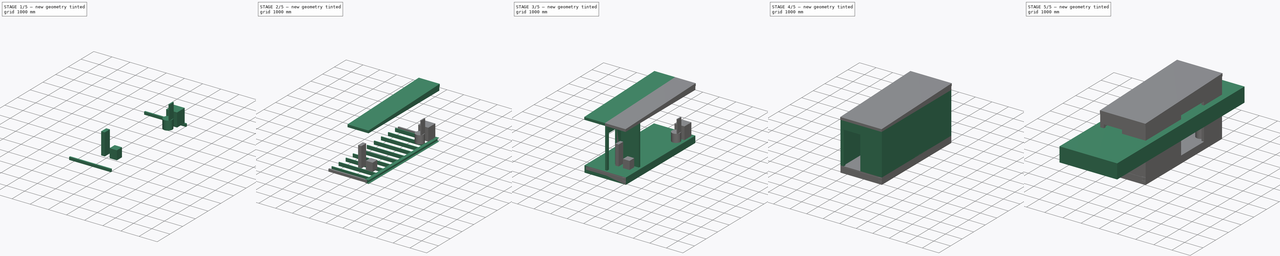
[diagram: build sequence overview — one tinted view per stage of 5, left to right]
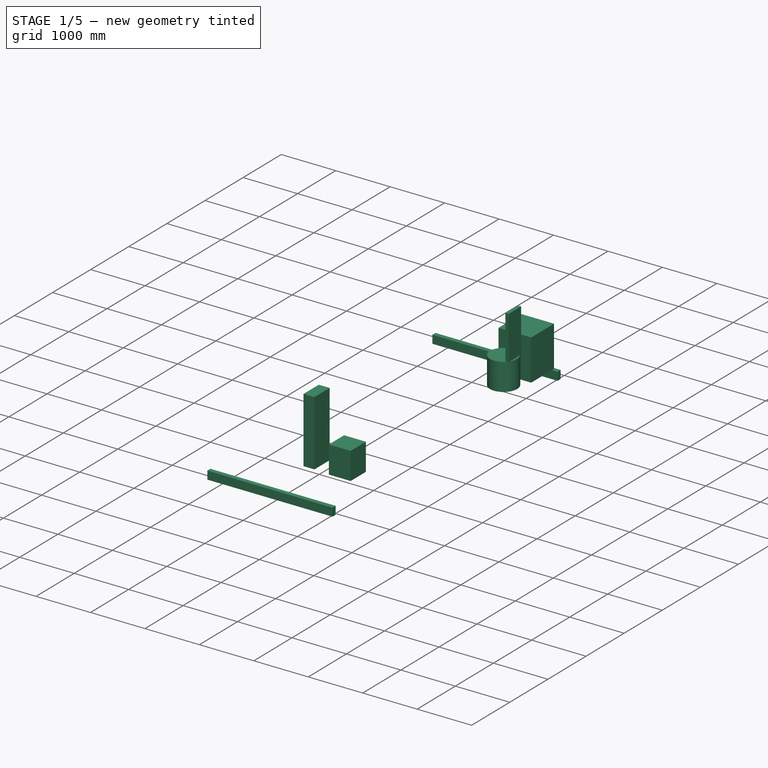
[diagram: stage 1 of 5 — iso view after this stage's code; geometry added in this stage tinted green]
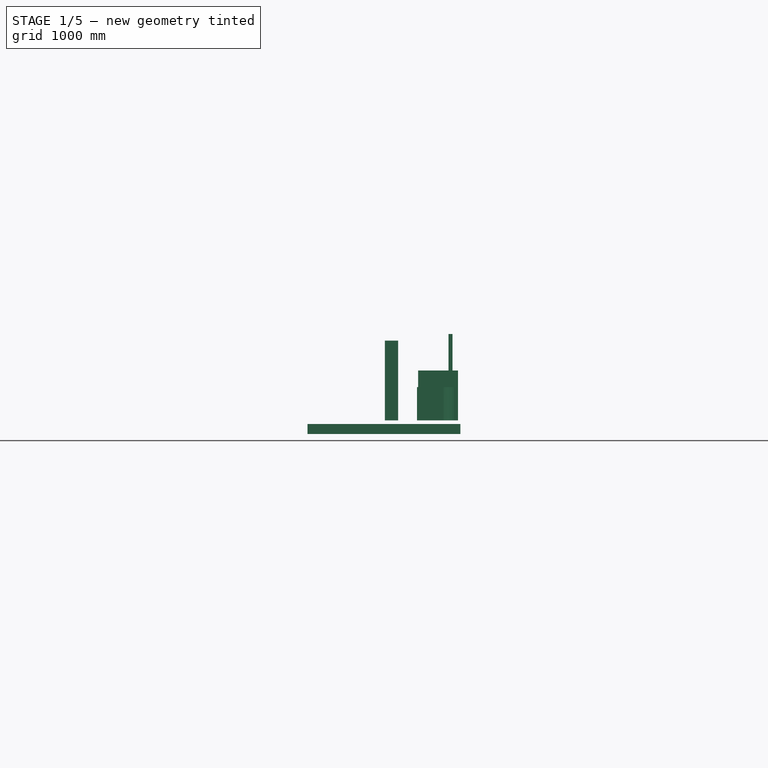
[diagram: stage 1 of 5 — front view after this stage's code; geometry added in this stage tinted green]
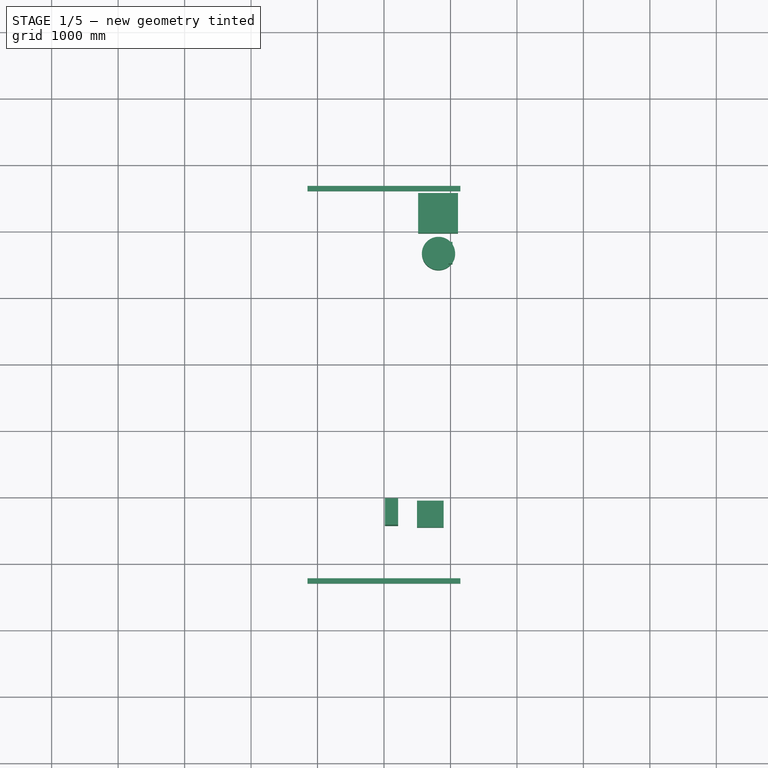
[diagram: stage 1 of 5 — top view after this stage's code; geometry added in this stage tinted green]
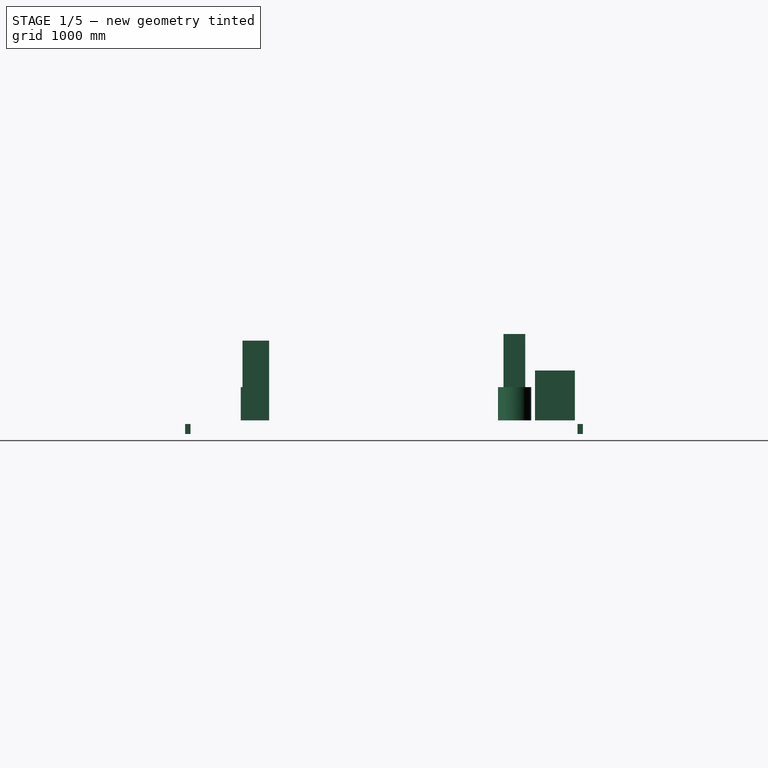
[diagram: stage 1 of 5 — right view after this stage's code; geometry added in this stage tinted green]
FCSTD DOCUMENT  (FreeCAD 0.16RUnknown)
Label: modulehouse
License: CreativeCommons Attribution-ShareAlike
LicenseURL: http://creativecommons.org/licenses/by-sa/4.0/
objects: Sketcher::SketchObject×21, PartDesign::Pad×15, Part::FeaturePython×13, Part::Mirroring×1, Part::MultiFuse×1, Part::Part2DObjectPython×1
note: 67 computed .brp shape members not serialized (recipe doc carries the construction recipe); baked Part::Feature solids carry a one-line shape summary decoded from their .brp

FEATURE [Sketcher::SketchObject] Sketch018  label="floor-endbeams"
  Placement = pos=(0,0,0) rot=(0.57735,0.57735,0.57735;2.0944rad)
  sketch-geometry (9):
    g0: LineSegment StartX=-2293.01 StartY=-54.5721 StartZ=0 EndX=-2213.01 EndY=-54.5721 EndZ=0
    g1: LineSegment StartX=-2213.01 StartY=-54.5721 StartZ=0 EndX=-2213.01 EndY=-204.572 EndZ=0
    g2: LineSegment StartX=-2213.01 StartY=-204.572 StartZ=0 EndX=-2293.01 EndY=-204.572 EndZ=0
    g3: LineSegment StartX=-2293.01 StartY=-204.572 StartZ=0 EndX=-2293.01 EndY=-54.5721 EndZ=0
    g4: LineSegment StartX=3691.04 StartY=-54.5721 StartZ=0 EndX=3611.04 EndY=-54.5721 EndZ=0
    g5: LineSegment StartX=3611.04 StartY=-54.5721 StartZ=0 EndX=3611.04 EndY=-204.572 EndZ=0
    g6: LineSegment StartX=3611.04 StartY=-204.572 StartZ=0 EndX=3691.04 EndY=-204.572 EndZ=0
    g7: LineSegment StartX=3691.04 StartY=-204.572 StartZ=0 EndX=3691.04 EndY=-54.5721 EndZ=0
    g8: LineSegment [constr] StartX=3611.04 StartY=-204.572 StartZ=0 EndX=-2213.01 EndY=-204.572 EndZ=0
  constraints (23):
    c: Coincident(g0,g1)
    c: Coincident(g1,g2)
    c: Coincident(g2,g3)
    c: Coincident(g3,g0)
    c: Horizontal(g0)
    c: Horizontal(g2)
    c: Vertical(g1)
    c: Vertical(g3)
    c: Coincident(g4,g5)
    c: Coincident(g5,g6)
    c: Coincident(g6,g7)
    c: Coincident(g7,g4)
    c: Horizontal(g4)
    c: Horizontal(g6)
    c: Vertical(g5)
    c: Vertical(g7)
    c: Equal(g6,g2)
    c: Equal(g3,g5)
    c: Coincident(g5,g8)
    c: Coincident(g8,g1)
    c: Horizontal(g8)
    c: DistanceY(g3,g3) = 150
    c: DistanceX(g2,g2) = 80
FEATURE [PartDesign::Pad] Pad009
  Length = 2300
  Length2 = 100
  Midplane = true
  Placement = pos=(0,0,0) rot=(0.57735,0.57735,0.57735;2.0944rad)
  Sketch = -> Sketch018
  Type = 0
FEATURE [PartDesign::Pad] Pad010
  Length = 500
  Length2 = 100
  Sketch = -> Sketch006
  Type = 0
FEATURE [PartDesign::Pad] Pad011
  Length = 1200
  Length2 = 100
  Sketch = -> Sketch007
  Type = 0
FEATURE [Sketcher::SketchObject] Sketch019  label="closet"
  sketch-geometry (4):
    g0: LineSegment StartX=1113.05 StartY=3569.95 StartZ=0 EndX=513.05 EndY=3569.95 EndZ=0
    g1: LineSegment StartX=513.05 StartY=3569.95 StartZ=0 EndX=513.05 EndY=2969.95 EndZ=0
    g2: LineSegment StartX=513.05 StartY=2969.95 StartZ=0 EndX=1113.05 EndY=2969.95 EndZ=0
    g3: LineSegment StartX=1113.05 StartY=2969.95 StartZ=0 EndX=1113.05 EndY=3569.95 EndZ=0
  constraints (10):
    c: Coincident(g0,g1)
    c: Coincident(g1,g2)
    c: Coincident(g2,g3)
    c: Coincident(g3,g0)
    c: Horizontal(g0)
    c: Horizontal(g2)
    c: Vertical(g1)
    c: Vertical(g3)
    c: Equal(g2,g3)
    c: DistanceX(g2,g2) = 600
FEATURE [PartDesign::Pad] Pad012
  Length = 750
  Length2 = 100
  Sketch = -> Sketch019
  Type = 0
FEATURE [Sketcher::SketchObject] Sketch020
  sketch-geometry (1):
    g0: Circle CenterX=820.11 CenterY=2664.66 CenterZ=0 NormalX=0 NormalY=0 NormalZ=1 Radius=250
  constraints (1):
    c: Radius(g0) = 250
FEATURE [PartDesign::Pad] Pad013
  Length = 500
  Length2 = 100
  Sketch = -> Sketch020
  Type = 0
FEATURE [Sketcher::SketchObject] Sketch021
  Placement = pos=(0,0,500) rot=(0,0,1;0rad)
  Support = -> Pad013 [Face3]
  sketch-geometry (4):
    g0: LineSegment StartX=969.744 StartY=2824.75 StartZ=0 EndX=1030.44 EndY=2824.75 EndZ=0
    g1: LineSegment StartX=1030.44 StartY=2824.75 StartZ=0 EndX=1030.44 EndY=2497.64 EndZ=0
    g2: LineSegment StartX=1030.44 StartY=2497.64 StartZ=0 EndX=969.744 EndY=2497.64 EndZ=0
    g3: LineSegment StartX=969.744 StartY=2497.64 StartZ=0 EndX=969.744 EndY=2824.75 EndZ=0
  constraints (8):
    c: Coincident(g0,g1)
    c: Coincident(g1,g2)
    c: Coincident(g2,g3)
    c: Coincident(g3,g0)
    c: Horizontal(g0)
    c: Horizontal(g2)
    c: Vertical(g1)
    c: Vertical(g3)
FEATURE [PartDesign::Pad] Pad014
  Length = 800
  Length2 = 100
  Sketch = -> Sketch021
  Type = 0
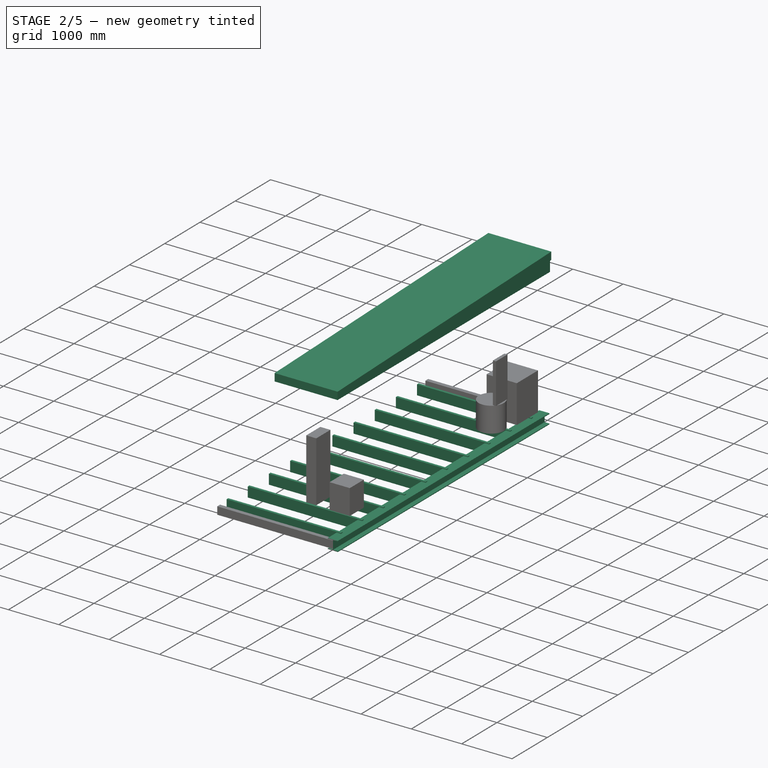
[diagram: stage 2 of 5 — iso view after this stage's code; geometry added in this stage tinted green]
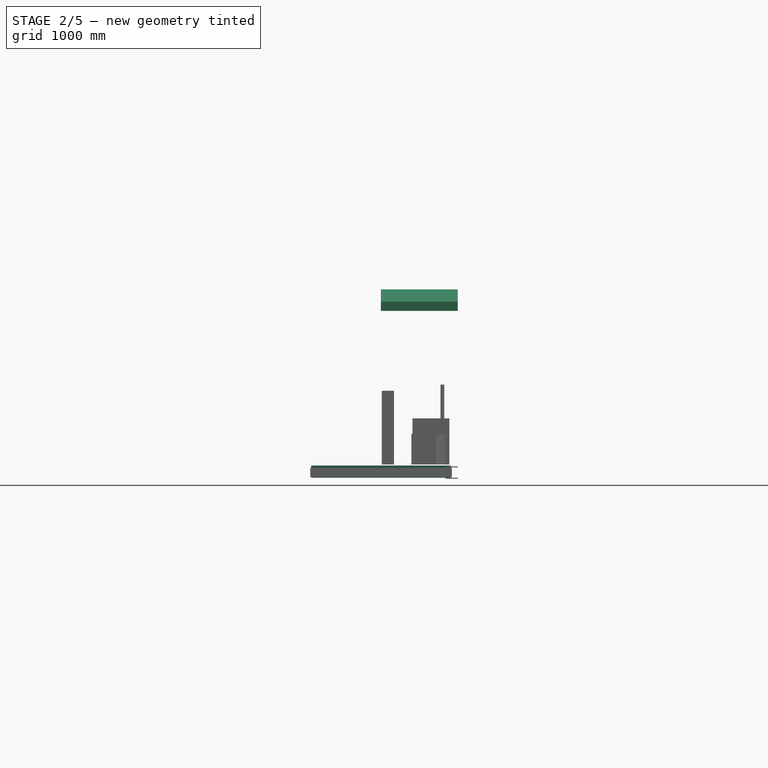
[diagram: stage 2 of 5 — front view after this stage's code; geometry added in this stage tinted green]
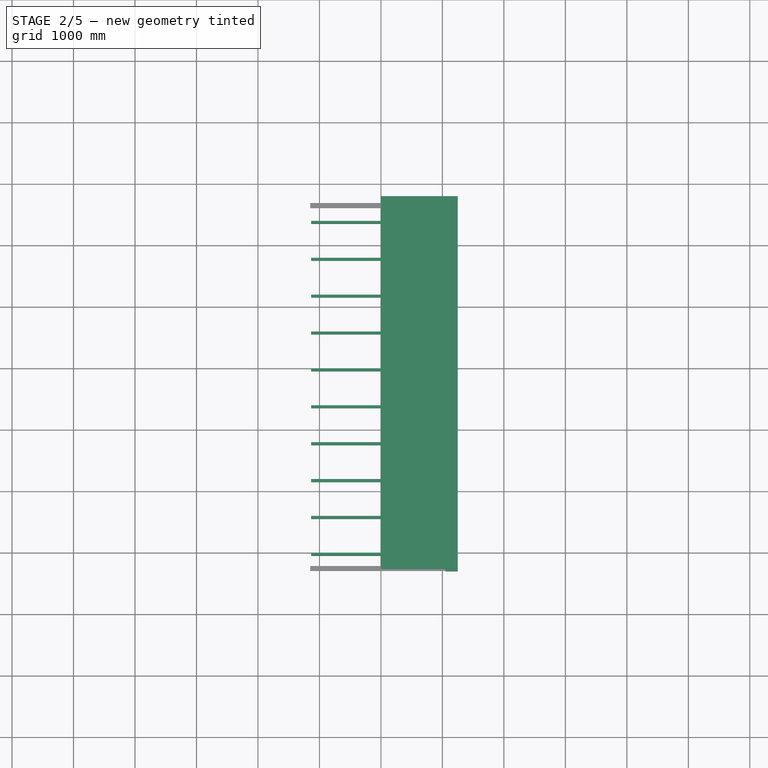
[diagram: stage 2 of 5 — top view after this stage's code; geometry added in this stage tinted green]
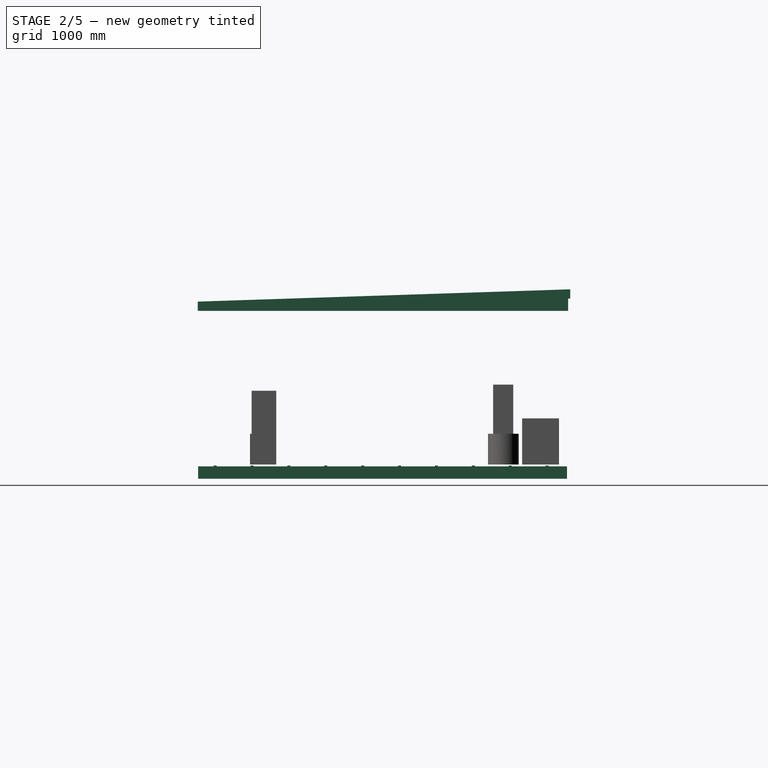
[diagram: stage 2 of 5 — right view after this stage's code; geometry added in this stage tinted green]
FEATURE [Sketcher::SketchObject] Sketch015
  Placement = pos=(0,0,0) rot=(0.57735,0.57735,0.57735;2.0944rad)
  sketch-geometry (4):
    g0: LineSegment StartX=-2307.2 StartY=2500 StartZ=0 EndX=3752.8 EndY=2700 EndZ=0
    g1: LineSegment StartX=3752.8 StartY=2700 StartZ=0 EndX=3752.8 EndY=2850 EndZ=0
    g2: LineSegment StartX=3752.8 StartY=2850 StartZ=0 EndX=-2307.2 EndY=2650 EndZ=0
    g3: LineSegment StartX=-2307.2 StartY=2650 StartZ=0 EndX=-2307.2 EndY=2500 EndZ=0
  constraints (13):
    c: Coincident(g0,g1)
    c: Coincident(g1,g2)
    c: Coincident(g2,g3)
    c: Coincident(g3,g0)
    c: Vertical(g3)
    c: Vertical(g1)
    c: Parallel(g0,g2)
    c: DistanceY(g1,g1) = 150
    c: DistanceY(g0,g0) = 200
    c: Angle(g0) = 0.0329913
    c: DistanceX(g0,g0) = 6060
    c: DistanceY(g1) = 2850
    c: DistanceY(g0) = 2500
FEATURE [PartDesign::Pad] Pad006
  Length = 1250
  Length2 = 100
  Placement = pos=(0,0,0) rot=(0.57735,0.57735,0.57735;2.0944rad)
  Sketch = -> Sketch015
  Type = 0
FEATURE [Sketcher::SketchObject] Sketch016
  ExternalGeometry = -> [Pad006]
  Placement = pos=(1250,0,0) rot=(0.57735,0.57735,0.57735;2.0944rad)
  Support = -> Pad006 [Face6]
  sketch-geometry (4):
    g0: LineSegment StartX=-2282.2 StartY=2500.83 StartZ=0 EndX=3717.8 EndY=2698.84 EndZ=0
    g1: LineSegment StartX=3717.8 StartY=2698.84 StartZ=0 EndX=3717.8 EndY=2499.83 EndZ=0
    g2: LineSegment StartX=3717.8 StartY=2499.83 StartZ=0 EndX=-2282.2 EndY=2499.83 EndZ=0
    g3: LineSegment StartX=-2282.2 StartY=2499.83 StartZ=0 EndX=-2282.2 EndY=2500.83 EndZ=0
  constraints (12):
    c: Coincident(g0,g1)
    c: Vertical(g1)
    c: Coincident(g1,g2)
    c: Coincident(g2,g3)
    c: Coincident(g3,g0)
    c: Vertical(g3)
    c: DistanceX(g0,g0) = 6000
    c: PointOnObject(g0,g-3)
    c: Horizontal(g2)
    c: DistanceX(g-3,g0) = 25
    c: DistanceY(g3,g3) = 1
    c: PointOnObject(g0,g-3)
FEATURE [PartDesign::Pad] Pad007
  Length = 150
  Length2 = 100
  Placement = pos=(0,0,0) rot=(0.57735,0.57735,0.57735;2.0944rad)
  Reversed = true
  Sketch = -> Sketch016
  Type = 0
FEATURE [Part::Part2DObjectPython] HEB200  # Draft 2D object (typed FeaturePython)
  FlangeThickness = 15
  Height = 200
  WebThickness = 9
  Width = 200
FEATURE [Part::FeaturePython] Structure  # WARN: FeaturePython — macro-defined, semantics opaque (R4)
  Base = -> HEB200
  Height = 6000
  Length = 0
  MoveWithHost = false
  Nodes = (2) [(0,-2.56664e-15,0),(0,-2.56664e-15,6000)]
  Normal = (0,0,0)
  Placement = pos=(-1150,-2300,-130) rot=(1,0,0;1.5708rad)
  Profile = HEB200
  Role = 1
  Width = 100
FEATURE [Part::FeaturePython] Structure001  label="Clone of Structure"  # WARN: FeaturePython — macro-defined, semantics opaque (R4)
  CloneOf = -> Structure
  Height = 1000
  Length = 100
  MoveWithHost = false
  Nodes = (2) [(0,0,0),(0,0,1000)]
  Normal = (0,0,0)
  Placement = pos=(1150,-2300,-130) rot=(1,0,0;1.5708rad)
  Role = 1
  Width = 100
FEATURE [Sketcher::SketchObject] Sketch017  label="floor-beam"
  Placement = pos=(0,0,0) rot=(0.57735,0.57735,0.57735;2.0944rad)
  sketch-geometry (5):
    g0: LineSegment StartX=-2048 StartY=-16 StartZ=0 EndX=-2000 EndY=-16 EndZ=0
    g1: LineSegment StartX=-2000 StartY=-16 StartZ=0 EndX=-2000 EndY=-214 EndZ=0
    g2: LineSegment StartX=-2000 StartY=-214 StartZ=0 EndX=-2048 EndY=-214 EndZ=0
    g3: LineSegment StartX=-2048 StartY=-214 StartZ=0 EndX=-2048 EndY=-16 EndZ=0
    g4: LineSegment [constr] StartX=-2048 StartY=-214 StartZ=0 EndX=-2048 EndY=-230 EndZ=0
  constraints (15):
    c: Coincident(g0,g1)
    c: Coincident(g1,g2)
    c: Coincident(g2,g3)
    c: Coincident(g3,g0)
    c: Horizontal(g0)
    c: Horizontal(g2)
    c: Vertical(g1)
    c: Vertical(g3)
    c: DistanceY(g3,g3) = 198
    c: DistanceX(g2,g2) = 48
    c: Coincident(g4,g2)
    c: Vertical(g4)
    c: DistanceY(g4,g4) = 16
    c: DistanceY(g4) = -230
    c: DistanceX(g0) = -2000
FEATURE [PartDesign::Pad] Pad008
  Length = 2270
  Length2 = 100
  Midplane = true
  Placement = pos=(0,0,0) rot=(0.57735,0.57735,0.57735;2.0944rad)
  Sketch = -> Sketch017
  Type = 0
FEATURE [Part::FeaturePython] Array  # Draft array (typed FeaturePython)
  Angle = 360
  ArrayType = 0
  Axis = (0,0,1)
  Base = -> Pad008
  Center = (0,0,0)
  Fuse = false
  IntervalAxis = (0,0,0)
  IntervalX = (1,0,0)
  IntervalY = (0,600,0)
  IntervalZ = (0,0,0)
  NumberPolar = 1
  NumberX = 1
  NumberY = 10
  NumberZ = 1
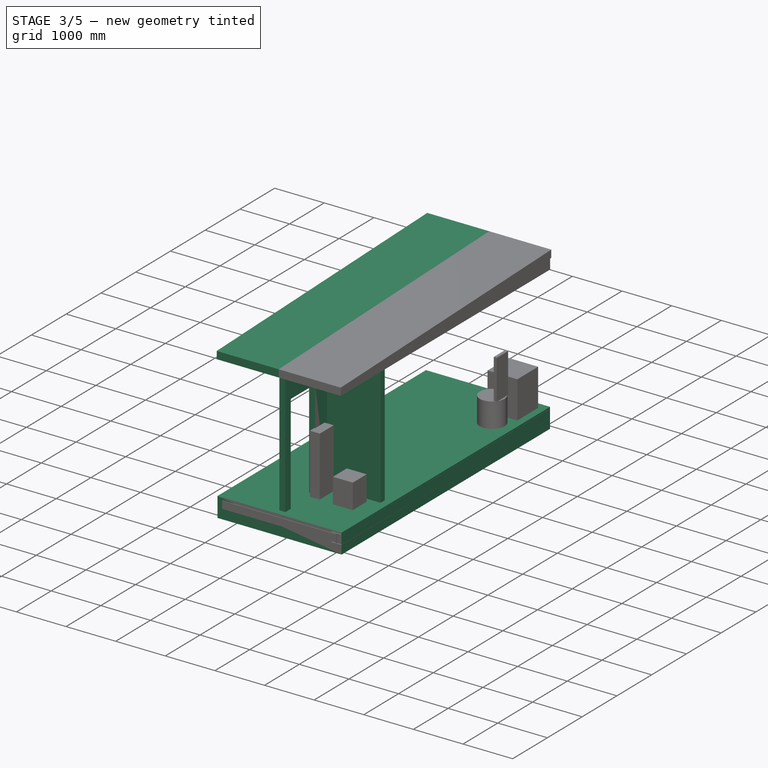
[diagram: stage 3 of 5 — iso view after this stage's code; geometry added in this stage tinted green]
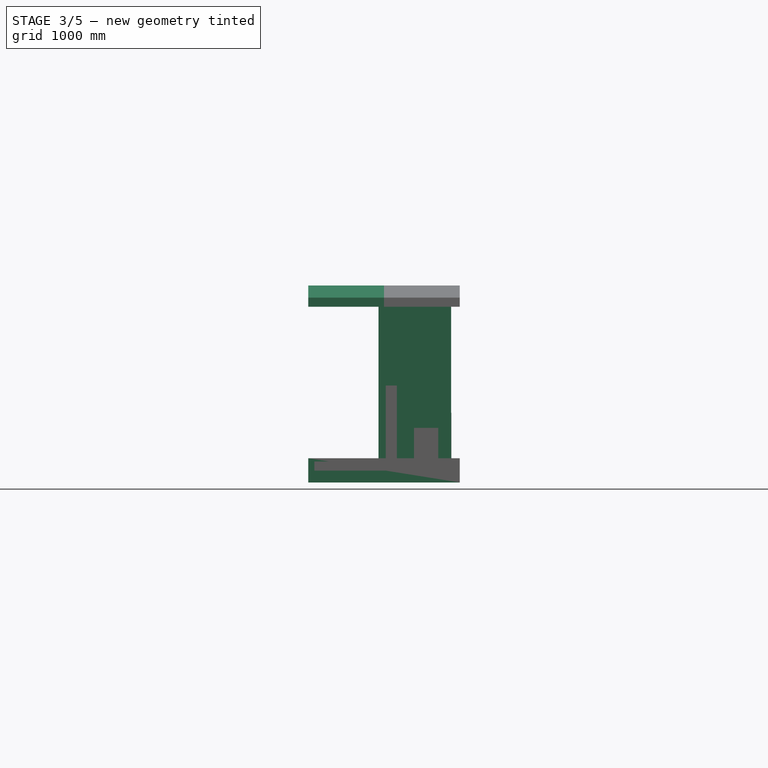
[diagram: stage 3 of 5 — front view after this stage's code; geometry added in this stage tinted green]
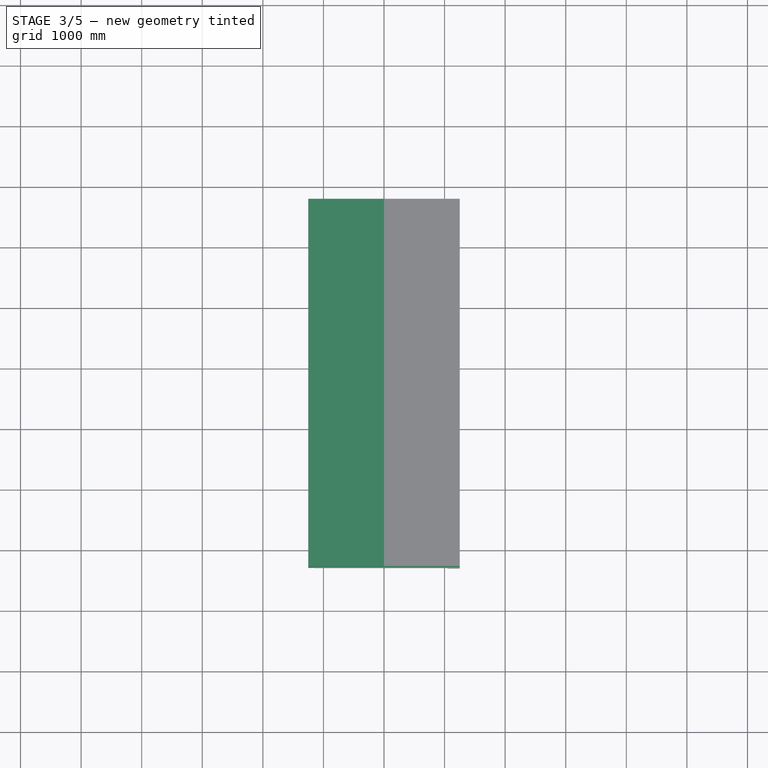
[diagram: stage 3 of 5 — top view after this stage's code; geometry added in this stage tinted green]
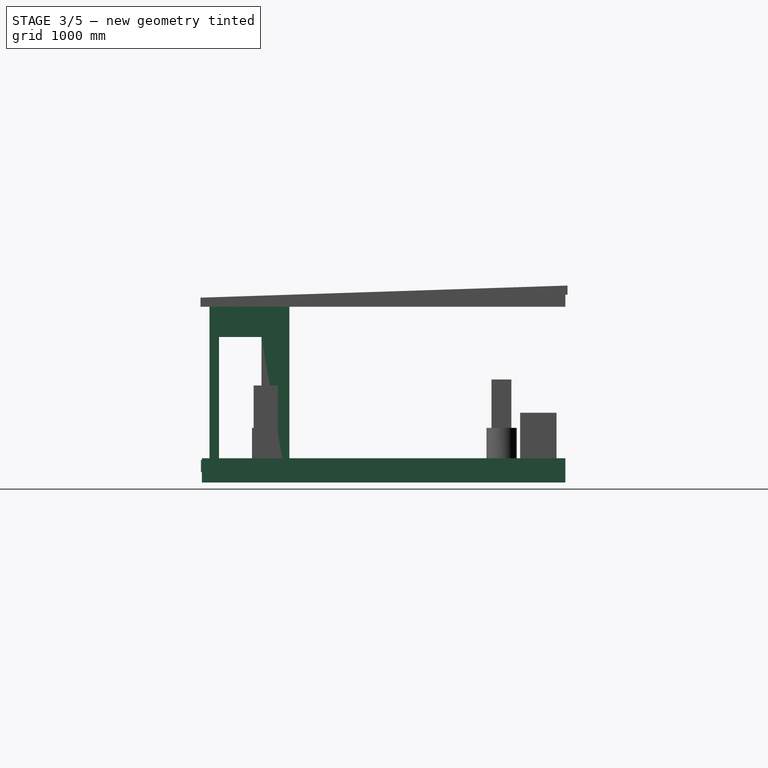
[diagram: stage 3 of 5 — right view after this stage's code; geometry added in this stage tinted green]
FEATURE [Sketcher::SketchObject] Sketch005  label="bathroom-wall"
  sketch-geometry (5):
    g0: LineSegment StartX=-91.6822 StartY=-838.186 StartZ=0 EndX=1108.32 EndY=-838.186 EndZ=0
    g1: LineSegment [constr] StartX=1108.32 StartY=-838.186 StartZ=0 EndX=1108.32 EndY=-2158.19 EndZ=0
    g2: LineSegment [constr] StartX=1108.32 StartY=-2158.19 StartZ=0 EndX=-91.6822 EndY=-2158.19 EndZ=0
    g3: LineSegment StartX=-91.6822 StartY=-2158.19 StartZ=0 EndX=-91.6822 EndY=-838.186 EndZ=0
    g4: LineSegment [constr] StartX=-91.6822 StartY=-838.186 StartZ=0 EndX=-1091.68 EndY=-838.186 EndZ=0
  constraints (13):
    c: Coincident(g0,g1)
    c: Coincident(g1,g2)
    c: Coincident(g2,g3)
    c: Coincident(g3,g0)
    c: Horizontal(g0)
    c: Horizontal(g2)
    c: Vertical(g1)
    c: Vertical(g3)
    c: DistanceY(g1,g1) = 1320
    c: DistanceX(g0,g0) = 1200
    c: Horizontal(g4)
    c: Coincident(g0,g4)
    c: DistanceX(g4,g4) = 1000
FEATURE [Part::FeaturePython] Wall003  # WARN: FeaturePython — macro-defined, semantics opaque (R4)
  Align = 0
  Base = -> Sketch005
  Face = 0
  Height = 2500
  Length = 2520
  MoveWithHost = false
  Normal = (0,0,0)
  Role = 0
  Width = 120
FEATURE [Sketcher::SketchObject] Sketch013
  Placement = pos=(-91.6822,-1300,0) rot=(0.57735,-0.57735,-0.57735;2.0944rad)
  sketch-geometry (8):
    g0: LineSegment StartX=0 StartY=0 StartZ=0 EndX=700 EndY=0 EndZ=0
    g1: LineSegment StartX=700 StartY=0 StartZ=0 EndX=700 EndY=2000 EndZ=0
    g2: LineSegment StartX=700 StartY=2000 StartZ=0 EndX=0 EndY=2000 EndZ=0
    g3: LineSegment StartX=0 StartY=2000 StartZ=0 EndX=0 EndY=0 EndZ=0
    g4: LineSegment StartX=50 StartY=0 StartZ=0 EndX=650 EndY=0 EndZ=0
    g5: LineSegment StartX=650 StartY=0 StartZ=0 EndX=650 EndY=1950 EndZ=0
    g6: LineSegment StartX=650 StartY=1950 StartZ=0 EndX=50 EndY=1950 EndZ=0
    g7: LineSegment StartX=50 StartY=1950 StartZ=0 EndX=50 EndY=0 EndZ=0
  constraints (23):
    c: Coincident(g0,g1)
    c: Coincident(g1,g2)
    c: Coincident(g2,g3)
    c: Coincident(g3,g0)
    c: Horizontal(g0)
    c: Horizontal(g2)
    c: Vertical(g1)
    c: Vertical(g3)
    c: Coincident(g4,g5)
    c: Coincident(g5,g6)
    c: Coincident(g6,g7)
    c: Coincident(g7,g4)
    c: Horizontal(g4)
    c: Horizontal(g6)
    c: Vertical(g5)
    c: Vertical(g7)
    c: DistanceY(g1) = 2000
    c: DistanceX(g0) = 700
    c: DistanceY(g6,g2) = 50
    c: DistanceX(g2,g6) = 50
    c: DistanceX(g4,g0) = 50
    c: DistanceY(g0,g4) = 0
    c: Coincident(g0,g-1)
FEATURE [Part::FeaturePython] Window003  label="Window002"  # WARN: FeaturePython — macro-defined, semantics opaque (R4)
  Base = -> Sketch013
  Height = 2000
  HoleDepth = 0
  MoveWithHost = true
  Normal = (1,0,0)
  Preset = 6
  Role = 1
  Width = 700
  WindowParts = OuterFrame | Frame | Wire0,Wire1 | 50.0 | 50.0 | Door | Solid panel | Wire1 | 50.0 | 100.0
FEATURE [Part::FeaturePython] Wall005  # WARN: FeaturePython — macro-defined, semantics opaque (R4)
  Align = 2
  Base = -> Wall003
  Face = 0
  Height = 3000
  Length = 0
  MoveWithHost = false
  Normal = (0,0,0)
  Role = 0
  Subtractions = -> [Window003]
  Width = 200
FEATURE [Sketcher::SketchObject] Sketch014  label="floorwork"
  sketch-geometry (4):
    g0: LineSegment StartX=-1250 StartY=3716.2 StartZ=0 EndX=1250 EndY=3716.2 EndZ=0
    g1: LineSegment StartX=1250 StartY=3716.2 StartZ=0 EndX=1250 EndY=-2283.8 EndZ=0
    g2: LineSegment StartX=1250 StartY=-2283.8 StartZ=0 EndX=-1250 EndY=-2283.8 EndZ=0
    g3: LineSegment StartX=-1250 StartY=-2283.8 StartZ=0 EndX=-1250 EndY=3716.2 EndZ=0
  constraints (11):
    c: Coincident(g0,g1)
    c: Coincident(g1,g2)
    c: Coincident(g2,g3)
    c: Coincident(g3,g0)
    c: Horizontal(g0)
    c: Horizontal(g2)
    c: Vertical(g1)
    c: Vertical(g3)
    c: Symmetric(g1,g2,g-2)
    c: DistanceX(g2,g2) = 2500
    c: DistanceY(g1,g1) = 6000
FEATURE [PartDesign::Pad] Pad005
  Length = 400
  Length2 = 100
  Reversed = true
  Sketch = -> Sketch014
  Type = 0
FEATURE [Part::Mirroring] Part__Mirroring  label="Pad007 (Mirror #1)"
  Base = (0,0,0)
  Normal = (1,0,0)
  Source = -> Pad007
FEATURE [Part::MultiFuse] Fusion  label="roof"
  Shapes = -> [Pad007,Part__Mirroring]
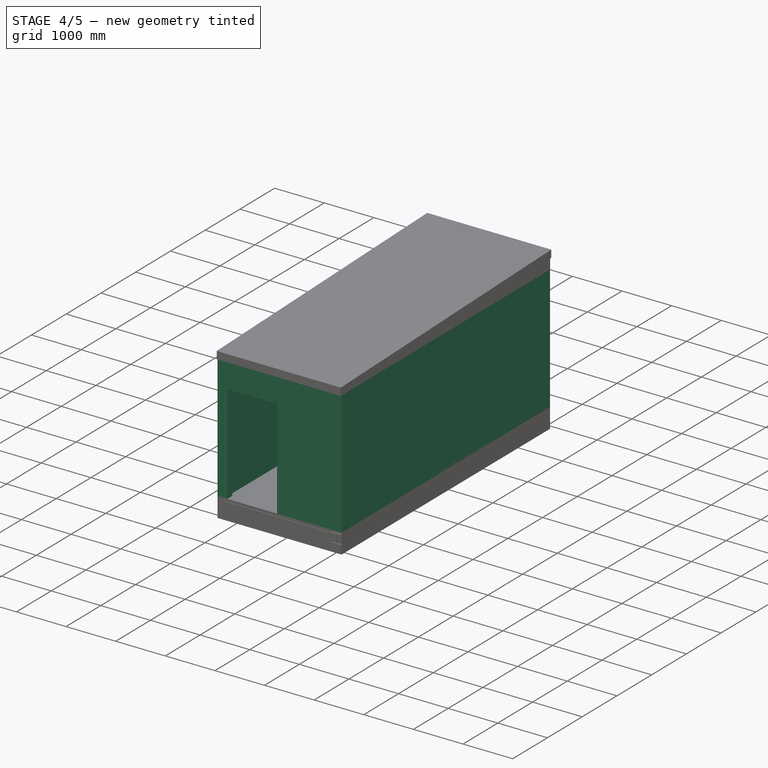
[diagram: stage 4 of 5 — iso view after this stage's code; geometry added in this stage tinted green]
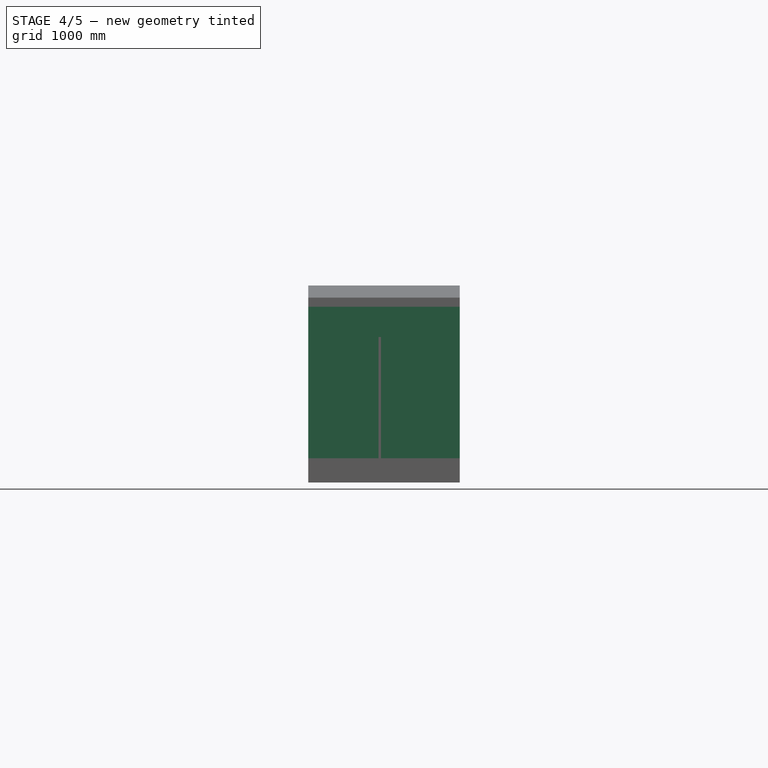
[diagram: stage 4 of 5 — front view after this stage's code; geometry added in this stage tinted green]
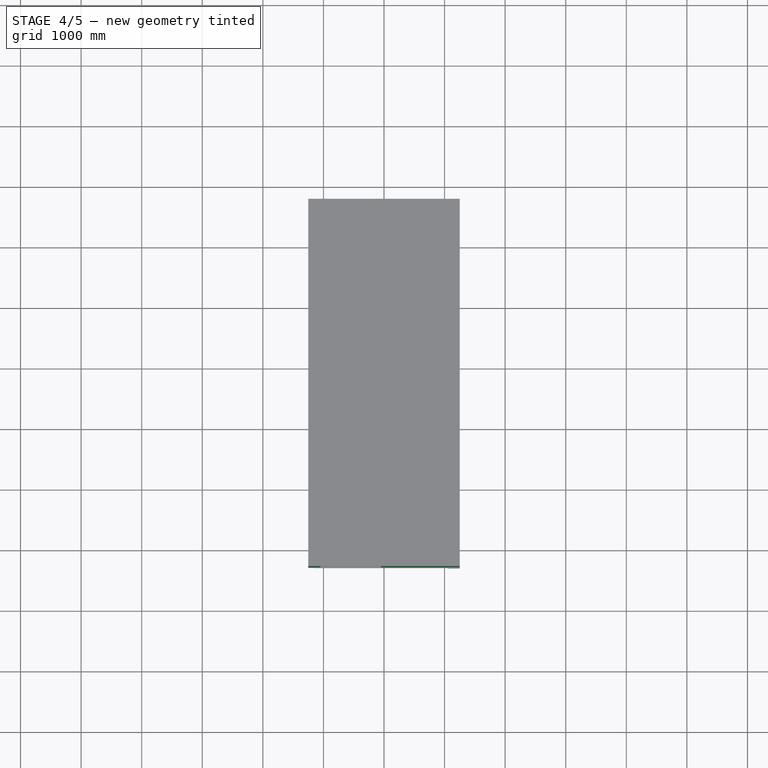
[diagram: stage 4 of 5 — top view after this stage's code; geometry added in this stage tinted green]
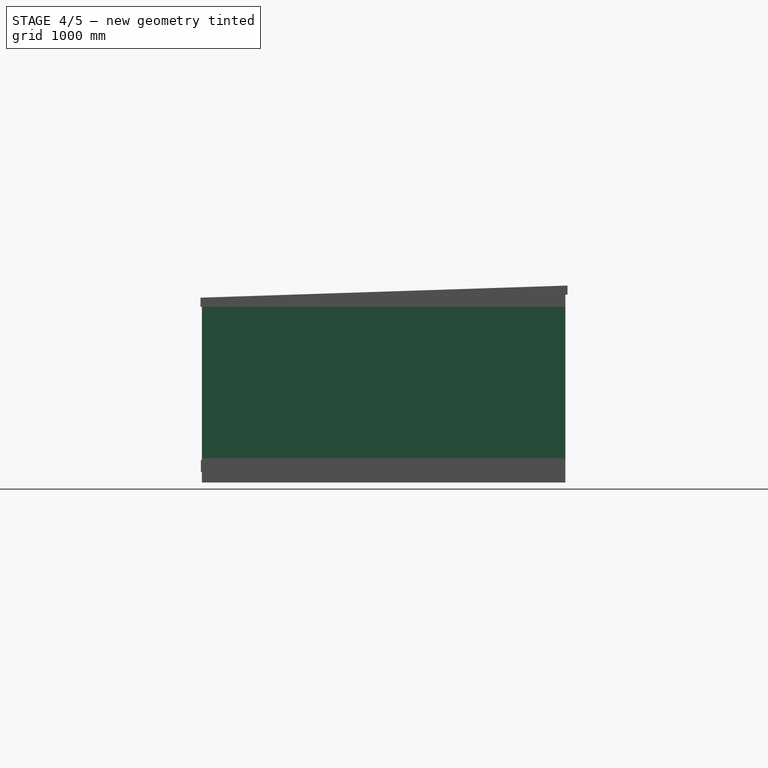
[diagram: stage 4 of 5 — right view after this stage's code; geometry added in this stage tinted green]
FEATURE [Sketcher::SketchObject] Sketch  label="outer"
  sketch-geometry (4):
    g0: LineSegment StartX=-1250 StartY=3716.2 StartZ=0 EndX=1250 EndY=3716.2 EndZ=0
    g1: LineSegment StartX=1250 StartY=3716.2 StartZ=0 EndX=1250 EndY=-2283.8 EndZ=0
    g2: LineSegment StartX=1250 StartY=-2283.8 StartZ=0 EndX=-1250 EndY=-2283.8 EndZ=0
    g3: LineSegment StartX=-1250 StartY=-2283.8 StartZ=0 EndX=-1250 EndY=3716.2 EndZ=0
  constraints (11):
    c: Coincident(g0,g1)
    c: Coincident(g1,g2)
    c: Coincident(g2,g3)
    c: Coincident(g3,g0)
    c: Horizontal(g0)
    c: Horizontal(g2)
    c: Vertical(g1)
    c: Vertical(g3)
    c: Symmetric(g1,g2,g-2)
    c: DistanceX(g2,g2) = 2500
    c: DistanceY(g1,g1) = 6000
FEATURE [Part::FeaturePython] Wall  # WARN: FeaturePython — macro-defined, semantics opaque (R4)
  Align = 0
  Base = -> Sketch
  Face = 0
  Height = 2500
  Length = 17000
  MoveWithHost = false
  Normal = (0,0,0)
  Role = 0
  Width = 140
FEATURE [Sketcher::SketchObject] Sketch001
  Placement = pos=(-1050,-2310.03,0) rot=(1,0,0;1.5708rad)
  sketch-geometry (8):
    g0: LineSegment StartX=0 StartY=0 StartZ=0 EndX=1000 EndY=0 EndZ=0
    g1: LineSegment StartX=1000 StartY=0 StartZ=0 EndX=1000 EndY=2000 EndZ=0
    g2: LineSegment StartX=1000 StartY=2000 StartZ=0 EndX=0 EndY=2000 EndZ=0
    g3: LineSegment StartX=0 StartY=2000 StartZ=0 EndX=0 EndY=0 EndZ=0
    g4: LineSegment StartX=50 StartY=0 StartZ=0 EndX=950 EndY=0 EndZ=0
    g5: LineSegment StartX=950 StartY=0 StartZ=0 EndX=950 EndY=1950 EndZ=0
    g6: LineSegment StartX=950 StartY=1950 StartZ=0 EndX=50 EndY=1950 EndZ=0
    g7: LineSegment StartX=50 StartY=1950 StartZ=0 EndX=50 EndY=0 EndZ=0
  constraints (23):
    c: Coincident(g0,g1)
    c: Coincident(g1,g2)
    c: Coincident(g2,g3)
    c: Coincident(g3,g0)
    c: Horizontal(g0)
    c: Horizontal(g2)
    c: Vertical(g1)
    c: Vertical(g3)
    c: Coincident(g4,g5)
    c: Coincident(g5,g6)
    c: Coincident(g6,g7)
    c: Coincident(g7,g4)
    c: Horizontal(g4)
    c: Horizontal(g6)
    c: Vertical(g5)
    c: Vertical(g7)
    c: DistanceY(g1) = 2000
    c: DistanceX(g0) = 1000
    c: DistanceY(g6,g2) = 50
    c: DistanceX(g2,g6) = 50
    c: DistanceX(g4,g0) = 50
    c: DistanceY(g0,g4) = 0
    c: Coincident(g0,g-1)
FEATURE [Part::FeaturePython] Window  label="entrydoor"  # WARN: FeaturePython — macro-defined, semantics opaque (R4)
  Base = -> Sketch001
  Height = 2000
  HoleDepth = 0
  MoveWithHost = true
  Normal = (0,1,0)
  Preset = 6
  Role = 1
  Width = 1000
  WindowParts = OuterFrame | Frame | Wire0,Wire1 | 50.0 | 50.0 | Door | Solid panel | Wire1 | 50.0 | 100.0
FEATURE [Part::FeaturePython] Wall001  # WARN: FeaturePython — macro-defined, semantics opaque (R4)
  Align = 2
  Base = -> Wall
  Face = 0
  Height = 3000
  Length = 0
  MoveWithHost = false
  Normal = (0,0,0)
  Role = 0
  Subtractions = -> [Window]
  Width = 200
FEATURE [Sketcher::SketchObject] Sketch002
  Placement = pos=(-1100,3550,800) rot=(1,0,0;1.5708rad)
  sketch-geometry (8):
    g0: LineSegment StartX=0 StartY=0 StartZ=0 EndX=2200 EndY=0 EndZ=0
    g1: LineSegment StartX=2200 StartY=0 StartZ=0 EndX=2200 EndY=1400 EndZ=0
    g2: LineSegment StartX=2200 StartY=1400 StartZ=0 EndX=0 EndY=1400 EndZ=0
    g3: LineSegment StartX=0 StartY=1400 StartZ=0 EndX=0 EndY=0 EndZ=0
    g4: LineSegment StartX=50 StartY=50 StartZ=0 EndX=2150 EndY=50 EndZ=0
    g5: LineSegment StartX=2150 StartY=50 StartZ=0 EndX=2150 EndY=1350 EndZ=0
    g6: LineSegment StartX=2150 StartY=1350 StartZ=0 EndX=50 EndY=1350 EndZ=0
    g7: LineSegment StartX=50 StartY=1350 StartZ=0 EndX=50 EndY=50 EndZ=0
  constraints (23):
    c: Coincident(g0,g1)
    c: Coincident(g1,g2)
    c: Coincident(g2,g3)
    c: Coincident(g3,g0)
    c: Horizontal(g0)
    c: Horizontal(g2)
    c: Vertical(g1)
    c: Vertical(g3)
    c: Coincident(g4,g5)
    c: Coincident(g5,g6)
    c: Coincident(g6,g7)
    c: Coincident(g7,g4)
    c: Horizontal(g4)
    c: Horizontal(g6)
    c: Vertical(g5)
    c: Vertical(g7)
    c: DistanceY(g1) = 1400
    c: DistanceX(g0) = 2200
    c: DistanceY(g6,g2) = 50
    c: DistanceX(g2,g6) = 50
    c: DistanceX(g4,g0) = 50
    c: DistanceY(g0,g4) = 50
    c: Coincident(g0,g-1)
FEATURE [Part::FeaturePython] Window001  label="Window"  # WARN: FeaturePython — macro-defined, semantics opaque (R4)
  Base = -> Sketch002
  Height = 1000
  HoleDepth = 0
  MoveWithHost = true
  Normal = (0,1,0)
  Preset = 1
  Role = 0
  Width = 1000
  WindowParts = OuterFrame | Frame | Wire0,Wire1 | 50.0 | 50.0 | Glass | Glass panel | Wire1 | 5.0 | 75.0
FEATURE [Sketcher::SketchObject] Sketch011
  Placement = pos=(1100,2300,0) rot=(0.57735,-0.57735,-0.57735;2.0944rad)
  sketch-geometry (16):
    g0: LineSegment StartX=0 StartY=0 StartZ=0 EndX=1800 EndY=0 EndZ=0
    g1: LineSegment StartX=1800 StartY=0 StartZ=0 EndX=1800 EndY=2000 EndZ=0
    g2: LineSegment StartX=1800 StartY=2000 StartZ=0 EndX=0 EndY=2000 EndZ=0
    g3: LineSegment StartX=0 StartY=2000 StartZ=0 EndX=0 EndY=0 EndZ=0
    g4: LineSegment StartX=50 StartY=0 StartZ=0 EndX=1750 EndY=0 EndZ=0
    g5: LineSegment StartX=1750 StartY=0 StartZ=0 EndX=1750 EndY=1950 EndZ=0
    g6: LineSegment StartX=1750 StartY=1950 StartZ=0 EndX=50 EndY=1950 EndZ=0
    g7: LineSegment StartX=50 StartY=1950 StartZ=0 EndX=50 EndY=0 EndZ=0
    g8: LineSegment StartX=55 StartY=5 StartZ=0 EndX=1745 EndY=5 EndZ=0
    g9: LineSegment StartX=1745 StartY=5 StartZ=0 EndX=1745 EndY=1945 EndZ=0
    g10: LineSegment StartX=1745 StartY=1945 StartZ=0 EndX=55 EndY=1945 EndZ=0
    g11: LineSegment StartX=55 StartY=1945 StartZ=0 EndX=55 EndY=5 EndZ=0
    g12: LineSegment StartX=105 StartY=55 StartZ=0 EndX=1695 EndY=55 EndZ=0
    g13: LineSegment StartX=1695 StartY=55 StartZ=0 EndX=1695 EndY=1895 EndZ=0
    g14: LineSegment StartX=1695 StartY=1895 StartZ=0 EndX=105 EndY=1895 EndZ=0
    g15: LineSegment StartX=105 StartY=1895 StartZ=0 EndX=105 EndY=55 EndZ=0
  constraints (47):
    c: Coincident(g0,g1)
    c: Coincident(g1,g2)
    c: Coincident(g2,g3)
    c: Coincident(g3,g0)
    c: Horizontal(g0)
    c: Horizontal(g2)
    c: Vertical(g1)
    c: Vertical(g3)
    c: Coincident(g4,g5)
    c: Coincident(g5,g6)
    c: Coincident(g6,g7)
    c: Coincident(g7,g4)
    c: Horizontal(g4)
    c: Horizontal(g6)
    c: Vertical(g5)
    c: Vertical(g7)
    c: DistanceY(g1) = 2000
    c: DistanceX(g0) = 1800
    c: DistanceY(g6,g2) = 50
    c: DistanceX(g2,g6) = 50
    c: DistanceX(g4,g0) = 50
    c: DistanceY(g0,g4) = 0
    c: Coincident(g0,g-1)
    c: Coincident(g8,g9)
    c: Coincident(g9,g10)
    c: Coincident(g10,g11)
    c: Coincident(g11,g8)
    c: Horizontal(g8)
    c: Horizontal(g10)
    c: Vertical(g9)
    c: Vertical(g11)
    c: Coincident(g12,g13)
    c: Coincident(g13,g14)
    c: Coincident(g14,g15)
    c: Coincident(g15,g12)
    c: Horizontal(g12)
    c: Horizontal(g14)
    c: Vertical(g13)
    c: Vertical(g15)
    c: DistanceX(g8,g12) = 50
    c: DistanceY(g8,g12) = 50
    c: DistanceX(g14,g10) = 50
    c: DistanceY(g14,g10) = 50
    c: DistanceX(g4,g8) = 5
    c: DistanceY(g4,g8) = 5
    c: DistanceX(g10,g6) = 5
    c: DistanceY(g10,g6) = 5
FEATURE [Part::FeaturePython] Window002  label="Window001"  # WARN: FeaturePython — macro-defined, semantics opaque (R4)
  Base = -> Sketch011
  Height = 2000
  HoleDepth = 0
  MoveWithHost = true
  Normal = (1,0,0)
  Preset = 7
  Role = 1
  Width = 2100
  WindowParts = OuterFrame | Frame | Wire0,Wire1 | 50.0 | 50.0 | InnerFrame | Frame | Wire2,Wire3 | 50.0 | 100.0 | InnerGlass | Glass panel | Wire3 | 5.0 | 125.0
FEATURE [Sketcher::SketchObject] Sketch012  label="kitchen-cubb"
  Placement = pos=(0,0,1400) rot=(0,0,1;0rad)
  sketch-geometry (4):
    g0: LineSegment StartX=-90.6368 StartY=-528.279 StartZ=0 EndX=1109.36 EndY=-528.279 EndZ=0
    g1: LineSegment StartX=1109.36 StartY=-528.279 StartZ=0 EndX=1109.36 EndY=-828.279 EndZ=0
    g2: LineSegment StartX=1109.36 StartY=-828.279 StartZ=0 EndX=-90.6368 EndY=-828.279 EndZ=0
    g3: LineSegment StartX=-90.6368 StartY=-828.279 StartZ=0 EndX=-90.6368 EndY=-528.279 EndZ=0
  constraints (10):
    c: Coincident(g0,g1)
    c: Coincident(g1,g2)
    c: Coincident(g2,g3)
    c: Coincident(g3,g0)
    c: Horizontal(g0)
    c: Horizontal(g2)
    c: Vertical(g1)
    c: Vertical(g3)
    c: DistanceY(g3,g3) = 300
    c: DistanceX(g2,g2) = 1200
FEATURE [PartDesign::Pad] Pad004
  Length = 600
  Length2 = 100
  Placement = pos=(0,0,1400) rot=(0,0,1;0rad)
  Sketch = -> Sketch012
  Type = 0
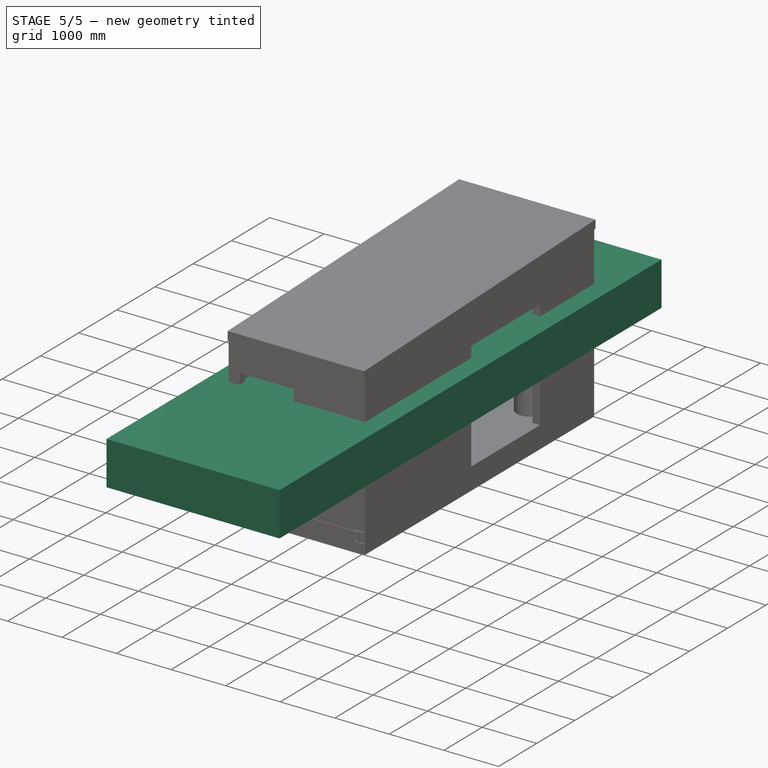
[diagram: stage 5 of 5 — iso view after this stage's code; geometry added in this stage tinted green]
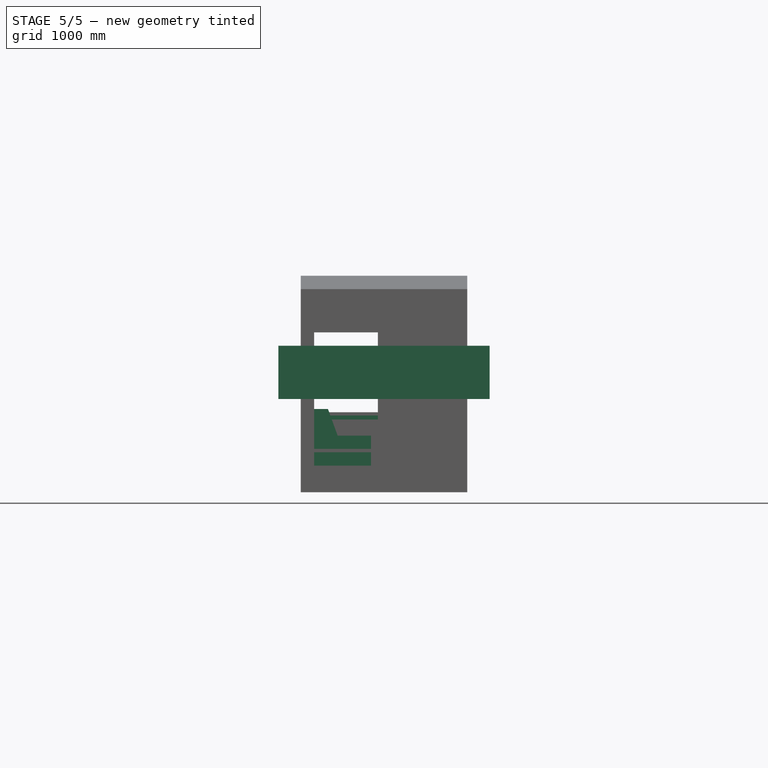
[diagram: stage 5 of 5 — front view after this stage's code; geometry added in this stage tinted green]
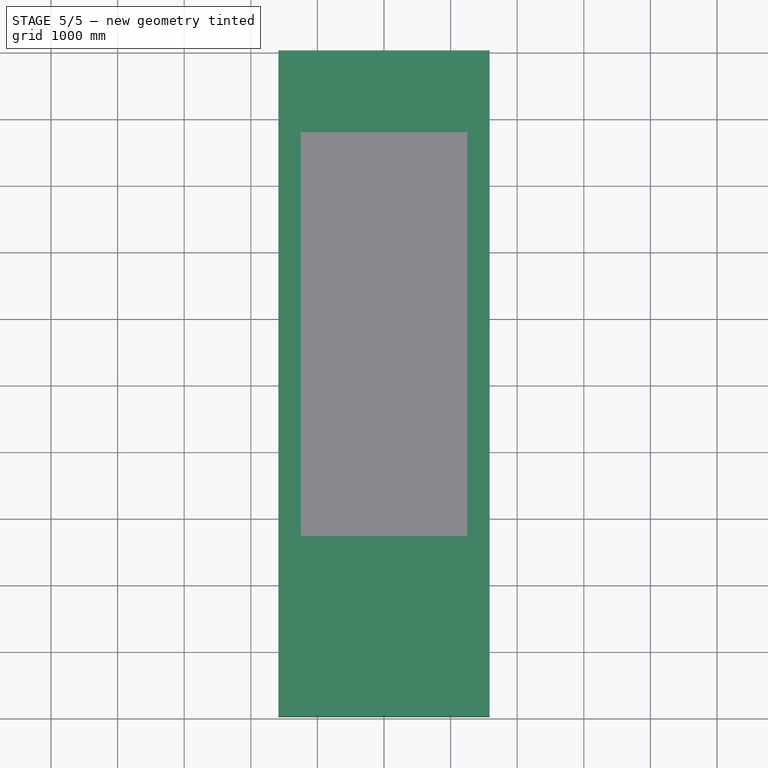
[diagram: stage 5 of 5 — top view after this stage's code; geometry added in this stage tinted green]
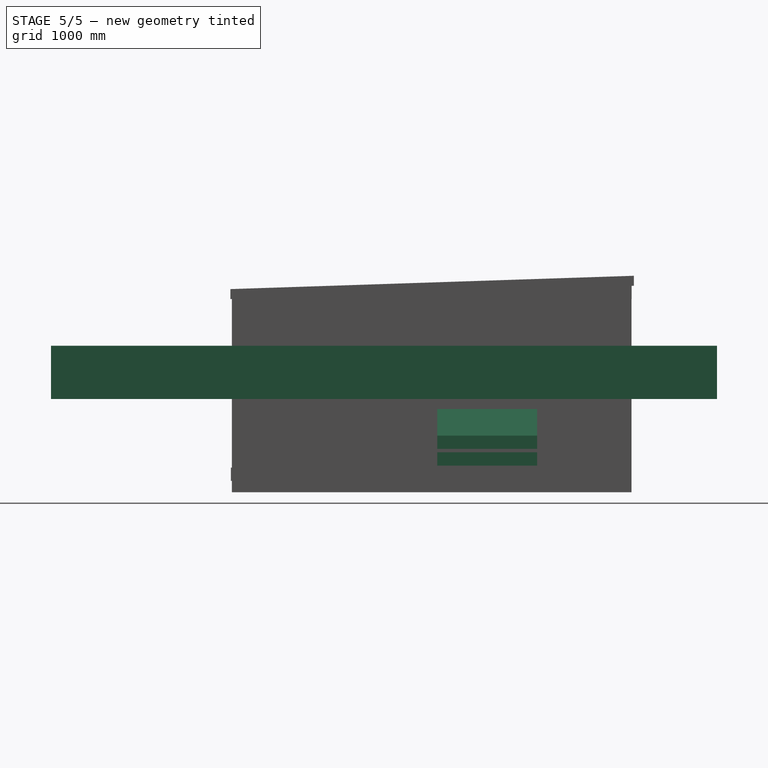
[diagram: stage 5 of 5 — right view after this stage's code; geometry added in this stage tinted green]
FEATURE [Part::FeaturePython] Wall002  # WARN: FeaturePython — macro-defined, semantics opaque (R4)
  Align = 2
  Base = -> Wall001
  Face = 0
  Height = 3000
  Length = 0
  MoveWithHost = false
  Normal = (0,0,0)
  Role = 0
  Subtractions = -> [Window001]
  Width = 200
FEATURE [Sketcher::SketchObject] Sketch003  label="ref-eyeheight"
  Placement = pos=(0,0,0) rot=(1,0,0;1.5708rad)
  sketch-geometry (4):
    g0: LineSegment StartX=-1585.95 StartY=1800 StartZ=0 EndX=1585.95 EndY=1800 EndZ=0
    g1: LineSegment StartX=1585.95 StartY=1800 StartZ=0 EndX=1585.95 EndY=1000 EndZ=0
    g2: LineSegment StartX=1585.95 StartY=1000 StartZ=0 EndX=-1585.95 EndY=1000 EndZ=0
    g3: LineSegment StartX=-1585.95 StartY=1000 StartZ=0 EndX=-1585.95 EndY=1800 EndZ=0
  constraints (11):
    c: Coincident(g0,g1)
    c: Coincident(g1,g2)
    c: Coincident(g2,g3)
    c: Coincident(g3,g0)
    c: Horizontal(g0)
    c: Horizontal(g2)
    c: Vertical(g1)
    c: Vertical(g3)
    c: Symmetric(g1,g2,g-2)
    c: DistanceY(g2) = 1000
    c: DistanceY(g0) = 1800
FEATURE [PartDesign::Pad] Pad
  Length = 10000
  Length2 = 100
  Midplane = true
  Placement = pos=(0,0,0) rot=(1,0,0;1.5708rad)
  Sketch = -> Sketch003
  Type = 0
FEATURE [Sketcher::SketchObject] Sketch004  label="deskplate"
  Placement = pos=(0,3600,2) rot=(1,0,0;1.5708rad)
  sketch-geometry (4):
    g0: LineSegment StartX=-1102.4 StartY=750 StartZ=0 EndX=1097.6 EndY=750 EndZ=0
    g1: LineSegment StartX=1097.6 StartY=750 StartZ=0 EndX=1097.6 EndY=690 EndZ=0
    g2: LineSegment StartX=1097.6 StartY=690 StartZ=0 EndX=-1102.4 EndY=690 EndZ=0
    g3: LineSegment StartX=-1102.4 StartY=690 StartZ=0 EndX=-1102.4 EndY=750 EndZ=0
  constraints (11):
    c: Coincident(g0,g1)
    c: Coincident(g1,g2)
    c: Coincident(g2,g3)
    c: Coincident(g3,g0)
    c: Horizontal(g0)
    c: Horizontal(g2)
    c: Vertical(g1)
    c: Vertical(g3)
    c: DistanceY(g0) = 750
    c: DistanceY(g3,g3) = 60
    c: DistanceX(g2,g2) = 2200
FEATURE [PartDesign::Pad] Pad001
  Length = 600
  Length2 = 100
  Placement = pos=(0,3600,2) rot=(1,0,0;1.5708rad)
  Sketch = -> Sketch004
  Type = 0
FEATURE [Sketcher::SketchObject] Sketch006  label="toilet"
  sketch-geometry (4):
    g0: LineSegment StartX=496.224 StartY=-1055.84 StartZ=0 EndX=896.224 EndY=-1055.84 EndZ=0
    g1: LineSegment StartX=896.224 StartY=-1055.84 StartZ=0 EndX=896.224 EndY=-1455.84 EndZ=0
    g2: LineSegment StartX=896.224 StartY=-1455.84 StartZ=0 EndX=496.224 EndY=-1455.84 EndZ=0
    g3: LineSegment StartX=496.224 StartY=-1455.84 StartZ=0 EndX=496.224 EndY=-1055.84 EndZ=0
  constraints (10):
    c: Coincident(g0,g1)
    c: Coincident(g1,g2)
    c: Coincident(g2,g3)
    c: Coincident(g3,g0)
    c: Horizontal(g0)
    c: Horizontal(g2)
    c: Vertical(g1)
    c: Vertical(g3)
    c: DistanceX(g2,g2) = 400
    c: DistanceY(g1,g1) = 400
FEATURE [Sketcher::SketchObject] Sketch007  label="bathroom-sink"
  sketch-geometry (4):
    g0: LineSegment StartX=12.6701 StartY=-1029.76 StartZ=0 EndX=212.67 EndY=-1029.76 EndZ=0
    g1: LineSegment StartX=212.67 StartY=-1029.76 StartZ=0 EndX=212.67 EndY=-1429.76 EndZ=0
    g2: LineSegment StartX=212.67 StartY=-1429.76 StartZ=0 EndX=12.6701 EndY=-1429.76 EndZ=0
    g3: LineSegment StartX=12.6701 StartY=-1429.76 StartZ=0 EndX=12.6701 EndY=-1029.76 EndZ=0
  constraints (10):
    c: Coincident(g0,g1)
    c: Coincident(g1,g2)
    c: Coincident(g2,g3)
    c: Coincident(g3,g0)
    c: Horizontal(g0)
    c: Horizontal(g2)
    c: Vertical(g1)
    c: Vertical(g3)
    c: DistanceY(g3,g3) = 400
    c: DistanceX(g0,g0) = 200
FEATURE [Sketcher::SketchObject] Sketch008  label="kitcken-counter"
  sketch-geometry (4):
    g0: LineSegment StartX=-84.2812 StartY=-234.403 StartZ=0 EndX=1115.72 EndY=-234.403 EndZ=0
    g1: LineSegment StartX=1115.72 StartY=-234.403 StartZ=0 EndX=1115.72 EndY=-834.403 EndZ=0
    g2: LineSegment StartX=1115.72 StartY=-834.403 StartZ=0 EndX=-84.2812 EndY=-834.403 EndZ=0
    g3: LineSegment StartX=-84.2812 StartY=-834.403 StartZ=0 EndX=-84.2812 EndY=-234.403 EndZ=0
  constraints (10):
    c: Coincident(g0,g1)
    c: Coincident(g1,g2)
    c: Coincident(g2,g3)
    c: Coincident(g3,g0)
    c: Horizontal(g0)
    c: Horizontal(g2)
    c: Vertical(g1)
    c: Vertical(g3)
    c: DistanceX(g2,g2) = 1200
    c: DistanceY(g3,g3) = 600
FEATURE [PartDesign::Pad] Pad002
  Length = 800
  Length2 = 100
  Sketch = -> Sketch008
  Type = 0
FEATURE [Sketcher::SketchObject] Sketch010  label="sofabed"
  Placement = pos=(0,1800,0) rot=(0,0.707107,0.707107;3.14159rad)
  sketch-geometry (10):
    g0: LineSegment StartX=196.08 StartY=450 StartZ=0 EndX=696.08 EndY=450 EndZ=0
    g1: LineSegment StartX=696.08 StartY=450 StartZ=0 EndX=841.668 EndY=850 EndZ=0
    g2: LineSegment StartX=841.668 StartY=850 StartZ=0 EndX=1096.08 EndY=850 EndZ=0
    g3: LineSegment StartX=1096.08 StartY=850 StartZ=0 EndX=1096.08 EndY=250 EndZ=0
    g4: LineSegment StartX=1096.08 StartY=250 StartZ=0 EndX=196.08 EndY=250 EndZ=0
    g5: LineSegment StartX=196.08 StartY=450 StartZ=0 EndX=196.08 EndY=250 EndZ=0
    g6: LineSegment StartX=1096.08 StartY=200 StartZ=0 EndX=196.083 EndY=200 EndZ=0
    g7: LineSegment StartX=196.083 StartY=200 StartZ=0 EndX=196.083 EndY=0 EndZ=0
    g8: LineSegment StartX=196.083 StartY=0 StartZ=0 EndX=1096.08 EndY=0 EndZ=0
    g9: LineSegment StartX=1096.08 StartY=0 StartZ=0 EndX=1096.08 EndY=200 EndZ=0
  constraints (29):
    c: Horizontal(g0)
    c: Coincident(g0,g1)
    c: Coincident(g1,g2)
    c: Horizontal(g2)
    c: Coincident(g2,g3)
    c: Vertical(g3)
    c: Coincident(g3,g4)
    c: Horizontal(g4)
    c: Coincident(g5,g0)
    c: Coincident(g5,g4)
    c: Vertical(g5)
    c: Coincident(g6,g7)
    c: Coincident(g7,g8)
    c: Coincident(g8,g9)
    c: Coincident(g9,g6)
    c: Horizontal(g6)
    c: Horizontal(g8)
    c: Vertical(g7)
    c: Vertical(g9)
    c: PointOnObject(g7,g-1)
    c: DistanceY(g0) = 450
    c: DistanceY(g5,g5) = 200
    c: Equal(g7,g5)
    c: Equal(g6,g4)
    c: DistanceX(g4,g4) = 900
    c: DistanceX(g0,g0) = 500
    c: Angle(g1,g0) = 1.91986
    c: DistanceY(g2) = 850
    c: DistanceX(g3) = 1096.08
FEATURE [PartDesign::Pad] Pad003
  Length = 2000
  Length2 = 100
  Midplane = true
  Placement = pos=(0,1800,0) rot=(0,0.707107,0.707107;3.14159rad)
  Sketch = -> Sketch010
  Type = 0
FEATURE [Part::FeaturePython] Wall004  # WARN: FeaturePython — macro-defined, semantics opaque (R4)
  Align = 2
  Base = -> Wall002
  Face = 0
  Height = 3000
  Length = 0
  MoveWithHost = false
  Normal = (0,0,0)
  Role = 0
  Subtractions = -> [Window002]
  Width = 200
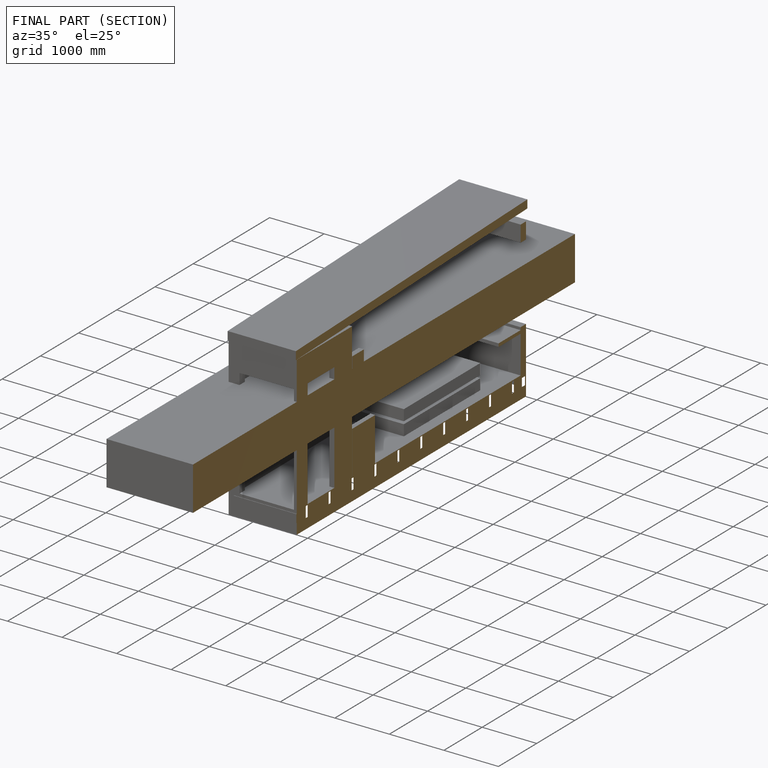
[diagram: finished part — half-section view (interior)]
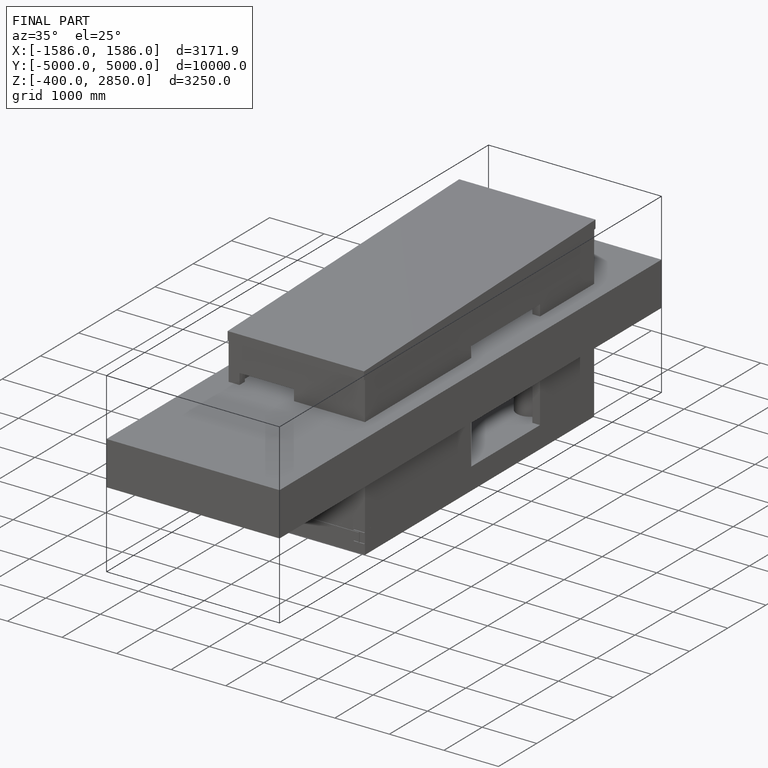
[diagram: finished part — iso view with bounding-box wireframe]
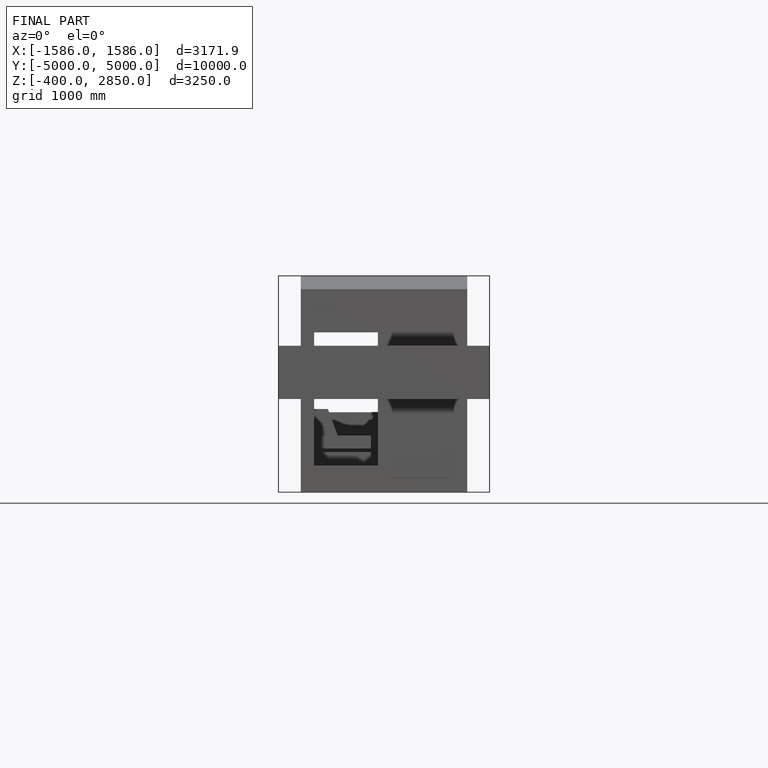
[diagram: finished part — front view with bounding-box wireframe]
